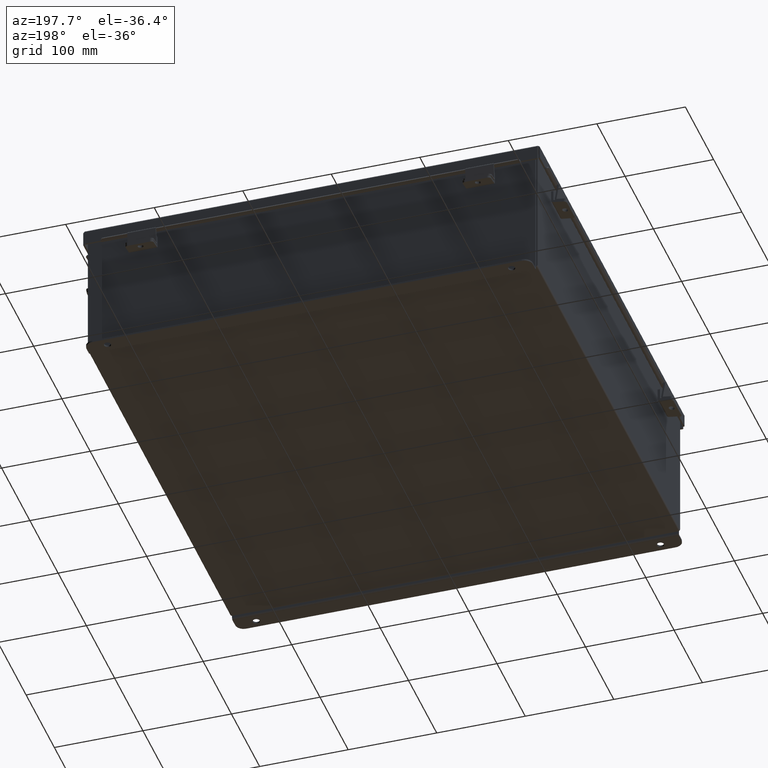
[diagram: clean part render]
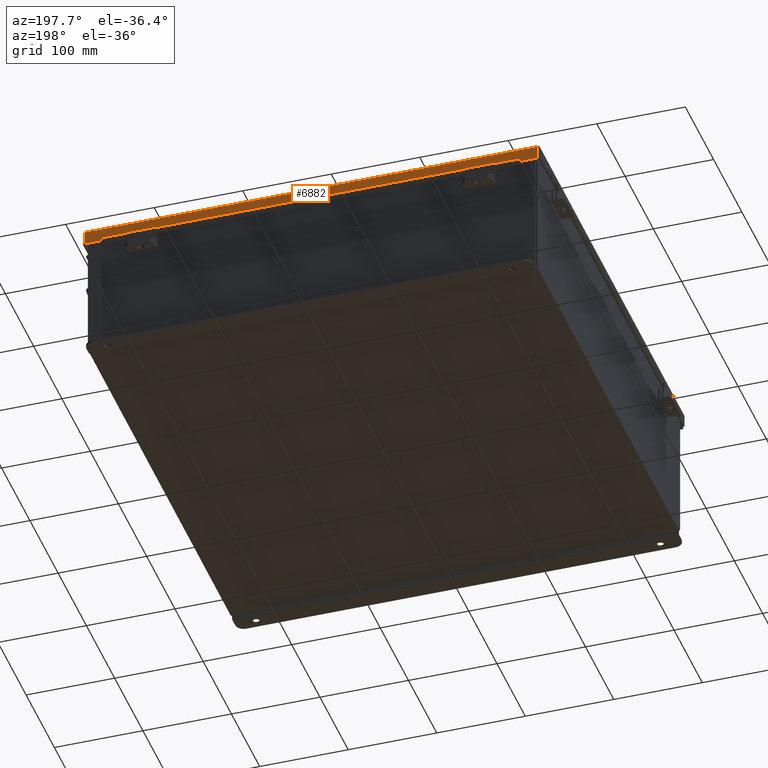
[diagram: same view with one face highlighted and labeled with its STEP entity id]
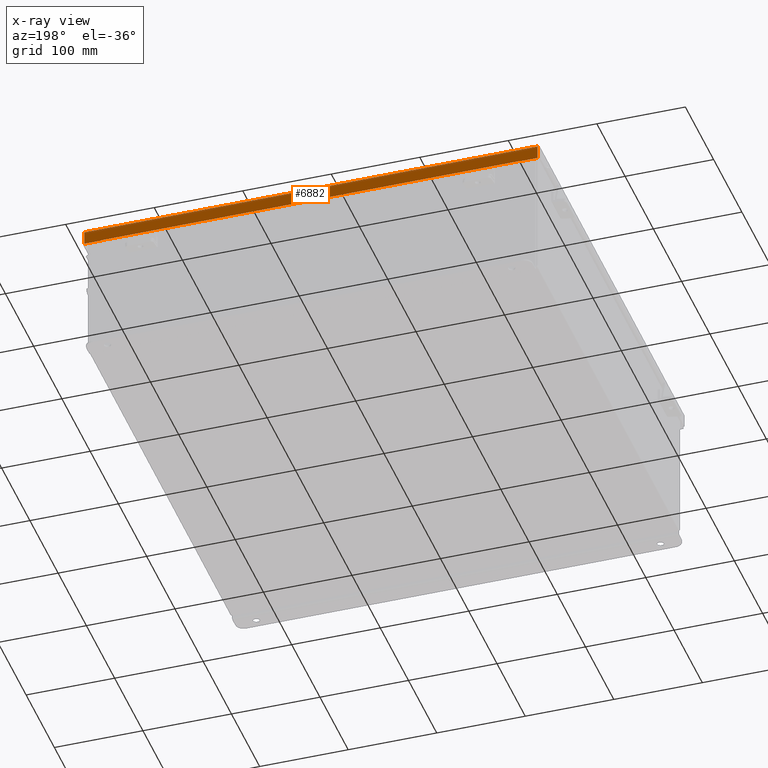
[diagram: x-ray of the same camera — body ghosted, the highlighted face saturated]
A machine part, auxiliary view. The second image highlights one B-rep face of the part: STEP entity #6882.
The next image is the same camera in x-ray: the body ghosted, the highlighted face saturated — about 0% of this face is hidden behind the body in this view.
In plain terms, the highlighted planar face has unit normal (-0, -1, -0).
Its self-contained STEP definition (entity closure, byte-faithful):
#95 = LINE ( 'NONE', #8332, #7949 ) ;
#215 = VERTEX_POINT ( 'NONE', #4583 ) ;
#238 = VERTEX_POINT ( 'NONE', #4892 ) ;
#276 = EDGE_CURVE ( 'NONE', #238, #3978, #9403, .T. ) ;
#286 = ORIENTED_EDGE ( 'NONE', *, *, #6130, .T. ) ;
#334 = VECTOR ( 'NONE', #4191, 39.37007874015748100 ) ;
#370 = ORIENTED_EDGE ( 'NONE', *, *, #7338, .F. ) ;
#576 = ORIENTED_EDGE ( 'NONE', *, *, #8804, .F. ) ;
#676 = VECTOR ( 'NONE', #1526, 39.37007874015748100 ) ;
#1292 = VECTOR ( 'NONE', #5686, 39.37007874015748100 ) ;
#1325 = EDGE_CURVE ( 'NONE', #5658, #5482, #95, .T. ) ;
#1337 = LINE ( 'NONE', #6765, #3136 ) ;
#1465 = VERTEX_POINT ( 'NONE', #4725 ) ;
#1526 = DIRECTION ( 'NONE',  ( -1.000000000000000000, -0.0000000000000000000, -0.0000000000000000000 ) ) ;
#1820 = VERTEX_POINT ( 'NONE', #2184 ) ;
#2184 = CARTESIAN_POINT ( 'NONE',  ( -10.07447893218813200, 10.15625000000000200, 0.01299999999999984700 ) ) ;
#2528 = VECTOR ( 'NONE', #5147, 39.37007874015748100 ) ;
#2563 = CARTESIAN_POINT ( 'NONE',  ( 10.07447893218813600, 10.15625000000000200, 0.01299999999999983600 ) ) ;
#3033 = ORIENTED_EDGE ( 'NONE', *, *, #1325, .T. ) ;
#3136 = VECTOR ( 'NONE', #7534, 39.37007874015748100 ) ;
#3148 = DIRECTION ( 'NONE',  ( 1.000000000000000000, 0.0000000000000000000, 3.362274453740632500E-018 ) ) ;
#3204 = EDGE_CURVE ( 'NONE', #1465, #3978, #4324, .T. ) ;
#3230 = CARTESIAN_POINT ( 'NONE',  ( 10.15625000000000200, 10.15625000000000200, 0.01299999999999984700 ) ) ;
#3407 = CARTESIAN_POINT ( 'NONE',  ( -9.324478932188130300, 10.15625000000000200, 0.5967115427318789900 ) ) ;
#3725 = DIRECTION ( 'NONE',  ( 1.000000000000000000, 0.0000000000000000000, 3.362274453740632500E-018 ) ) ;
#3978 = VERTEX_POINT ( 'NONE', #4145 ) ;
#4036 = DIRECTION ( 'NONE',  ( -1.200094426993297800E-032, -1.000000000000000000, 3.569293475308526100E-015 ) ) ;
#4145 = CARTESIAN_POINT ( 'NONE',  ( -9.324478932188130300, 10.15625000000000400, 0.6122999999999997300 ) ) ;
#4191 = DIRECTION ( 'NONE',  ( -0.0000000000000000000, 3.569293475308526100E-015, 1.000000000000000000 ) ) ;
#4265 = EDGE_CURVE ( 'NONE', #5658, #215, #6561, .T. ) ;
#4324 = LINE ( 'NONE', #7712, #6341 ) ;
#4412 = AXIS2_PLACEMENT_3D ( 'NONE', #8612, #4036, #9365 ) ;
#4583 = CARTESIAN_POINT ( 'NONE',  ( 9.324478932188135600, 10.15625000000000200, 0.5967115427318789900 ) ) ;
#4719 = LINE ( 'NONE', #9123, #676 ) ;
#4725 = CARTESIAN_POINT ( 'NONE',  ( -10.07447893218813200, 10.15625000000000400, 0.6122999999999997300 ) ) ;
#4769 = PLANE ( 'NONE',  #4412 ) ;
#4892 = CARTESIAN_POINT ( 'NONE',  ( -9.324478932188130300, 10.15625000000000400, 0.5967115427318789900 ) ) ;
#5147 = DIRECTION ( 'NONE',  ( 7.009925220120717300E-014, -1.401985044024143500E-013, -1.000000000000000000 ) ) ;
#5421 = ORIENTED_EDGE ( 'NONE', *, *, #8577, .F. ) ;
#5482 = VERTEX_POINT ( 'NONE', #8279 ) ;
#5485 = DIRECTION ( 'NONE',  ( 1.000000000000000000, -1.200094426993297800E-032, 4.190107296696742600E-047 ) ) ;
#5494 = EDGE_LOOP ( 'NONE', ( #8150, #3033, #576, #5421, #286, #8736, #7757, #370 ) ) ;
#5658 = VERTEX_POINT ( 'NONE', #9204 ) ;
#5686 = DIRECTION ( 'NONE',  ( -7.009925220120440900E-014, 1.401985044024088200E-013, 1.000000000000000000 ) ) ;
#5783 = FACE_OUTER_BOUND ( 'NONE', #5494, .T. ) ;
#5794 = LINE ( 'NONE', #3230, #7827 ) ;
#5920 = CARTESIAN_POINT ( 'NONE',  ( 9.324478932188135600, 10.15625000000000400, 0.6122999999999992900 ) ) ;
#6130 = EDGE_CURVE ( 'NONE', #1820, #1465, #1337, .T. ) ;
#6150 = LINE ( 'NONE', #8762, #334 ) ;
#6341 = VECTOR ( 'NONE', #3148, 39.37007874015748100 ) ;
#6561 = LINE ( 'NONE', #5920, #2528 ) ;
#6765 = CARTESIAN_POINT ( 'NONE',  ( -10.07447893218813200, 10.15625000000000200, -3.651145051461380700E-014 ) ) ;
#6882 = ADVANCED_FACE ( 'NONE', ( #5783 ), #4769, .F. ) ;
#7338 = EDGE_CURVE ( 'NONE', #215, #238, #4719, .T. ) ;
#7534 = DIRECTION ( 'NONE',  ( 0.0000000000000000000, 3.569293475308526100E-015, 1.000000000000000000 ) ) ;
#7712 = CARTESIAN_POINT ( 'NONE',  ( -2.058720648025389400E-018, 10.15625000000000400, 0.6122999999999997300 ) ) ;
#7757 = ORIENTED_EDGE ( 'NONE', *, *, #276, .F. ) ;
#7827 = VECTOR ( 'NONE', #5485, 39.37007874015748100 ) ;
#7949 = VECTOR ( 'NONE', #3725, 39.37007874015748100 ) ;
#8150 = ORIENTED_EDGE ( 'NONE', *, *, #4265, .F. ) ;
#8279 = CARTESIAN_POINT ( 'NONE',  ( 10.07447893218813600, 10.15625000000000400, 0.6122999999999997300 ) ) ;
#8332 = CARTESIAN_POINT ( 'NONE',  ( -2.058720648025389400E-018, 10.15625000000000400, 0.6122999999999997300 ) ) ;
#8577 = EDGE_CURVE ( 'NONE', #1820, #8677, #5794, .T. ) ;
#8612 = CARTESIAN_POINT ( 'NONE',  ( 1.218845902415068000E-031, 10.15625000000000200, -3.651145051461380700E-014 ) ) ;
#8677 = VERTEX_POINT ( 'NONE', #2563 ) ;
#8736 = ORIENTED_EDGE ( 'NONE', *, *, #3204, .T. ) ;
#8762 = CARTESIAN_POINT ( 'NONE',  ( 10.07447893218813600, 10.15625000000000200, -2.666262226055474600E-016 ) ) ;
#8804 = EDGE_CURVE ( 'NONE', #8677, #5482, #6150, .T. ) ;
#9123 = CARTESIAN_POINT ( 'NONE',  ( 9.324478932188135600, 10.15625000000000200, 0.5967115427318789900 ) ) ;
#9204 = CARTESIAN_POINT ( 'NONE',  ( 9.324478932188135600, 10.15625000000000400, 0.6122999999999997300 ) ) ;
#9365 = DIRECTION ( 'NONE',  ( 0.0000000000000000000, -3.569293475308526100E-015, -1.000000000000000000 ) ) ;
#9403 = LINE ( 'NONE', #3407, #1292 ) ;